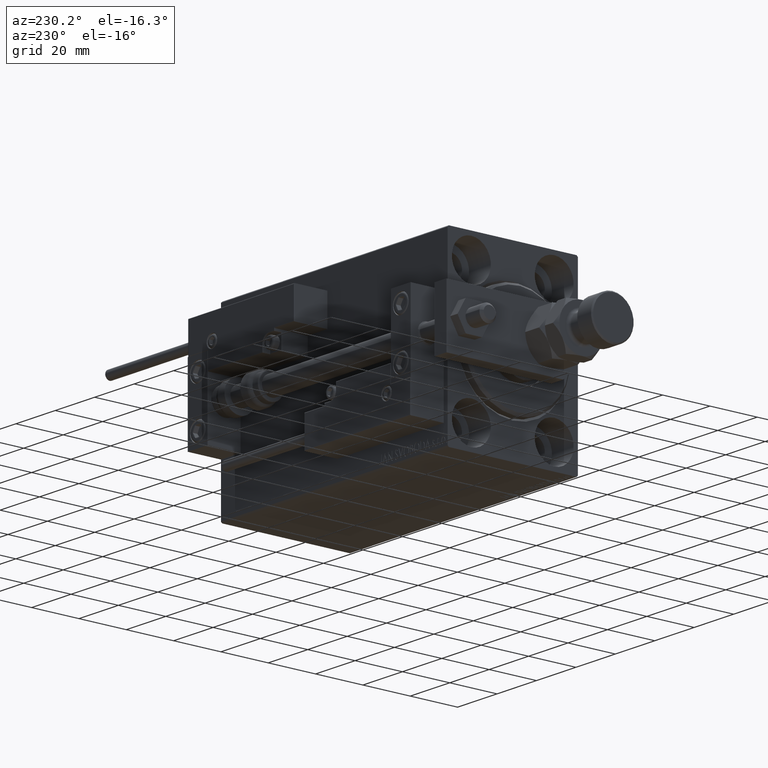
[diagram: clean part render]
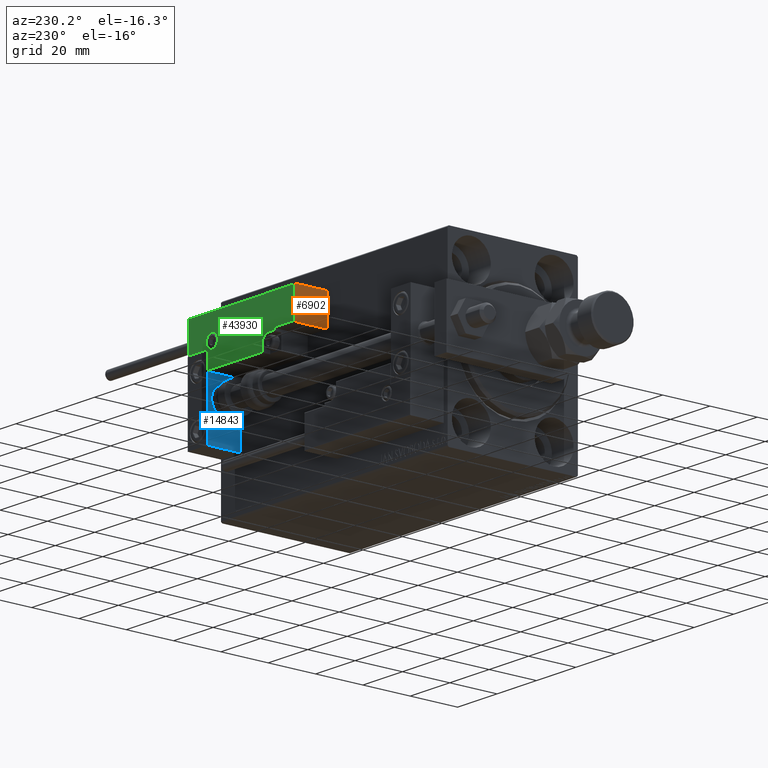
[diagram: same view with three faces highlighted in distinct colors, each labeled with its STEP entity id]
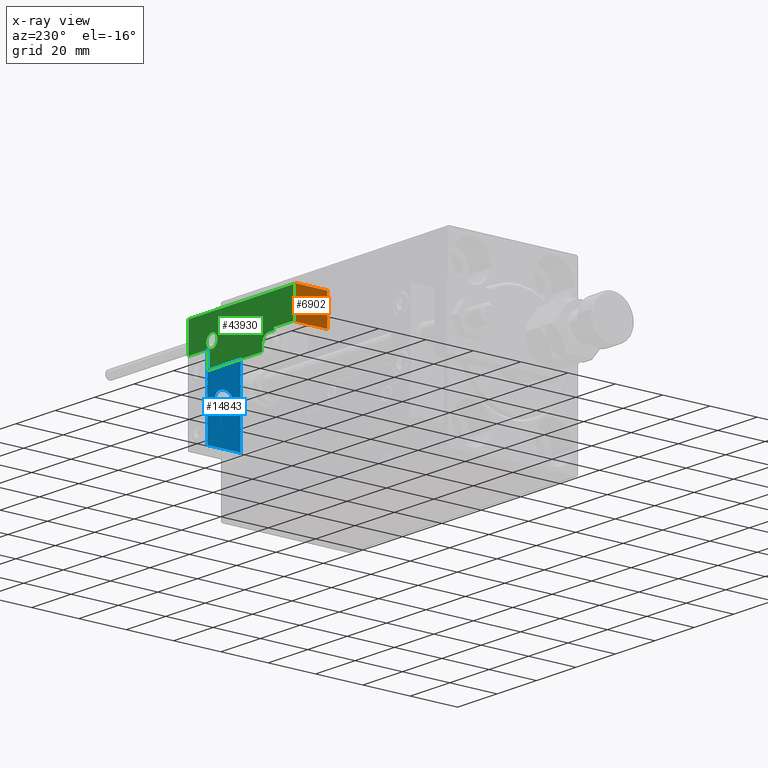
[diagram: x-ray of the same camera — body ghosted, the three highlighted faces saturated]
A machine part, auxiliary view with three faces highlighted in distinct colors.
The next image is the same camera in x-ray (body ghosted, the three faces saturated) — at least one of them is partly hidden behind the body in this view.
Their STEP definitions:

[orange] entity #6902 — the highlighted planar face has unit normal (1, -0, -0).
#1215 = EDGE_CURVE ( 'NONE', #35689, #28387, #51288, .T. ) ;
#3738 = FACE_OUTER_BOUND ( 'NONE', #23605, .T. ) ;
#5028 = EDGE_CURVE ( 'NONE', #28387, #42710, #25823, .T. ) ;
#6902 = ADVANCED_FACE ( 'NONE', ( #3738 ), #23800, .F. ) ;
#11634 = CARTESIAN_POINT ( 'NONE',  ( 27.00000000000006395, 7.000000000000007994, 13.70000000000000107 ) ) ;
#13708 = LINE ( 'NONE', #17882, #20208 ) ;
#17209 = CARTESIAN_POINT ( 'NONE',  ( 27.00000000000006395, 7.000000000000007994, 13.70000000000000107 ) ) ;
#17882 = CARTESIAN_POINT ( 'NONE',  ( 27.00000000000006395, 7.000000000000007994, 0.000000000000000000 ) ) ;
#18944 = DIRECTION ( 'NONE',  ( -0.000000000000000000, -1.000000000000000000, -0.000000000000000000 ) ) ;
#20208 = VECTOR ( 'NONE', #46293, 1000.000000000000000 ) ;
#22877 = AXIS2_PLACEMENT_3D ( 'NONE', #43616, #35535, #46750 ) ;
#23605 = EDGE_LOOP ( 'NONE', ( #35170, #29255, #43040, #39005 ) ) ;
#23800 = PLANE ( 'NONE',  #22877 ) ;
#24123 = CARTESIAN_POINT ( 'NONE',  ( 27.00000000000006395, 20.00000000000001776, 0.000000000000000000 ) ) ;
#25823 = LINE ( 'NONE', #26081, #36118 ) ;
#26081 = CARTESIAN_POINT ( 'NONE',  ( 27.00000000000006395, 7.000000000000007994, 14.00000000000000000 ) ) ;
#26781 = LINE ( 'NONE', #51045, #37339 ) ;
#28387 = VERTEX_POINT ( 'NONE', #17209 ) ;
#29255 = ORIENTED_EDGE ( 'NONE', *, *, #1215, .T. ) ;
#32738 = EDGE_CURVE ( 'NONE', #42710, #43097, #13708, .T. ) ;
#35004 = CARTESIAN_POINT ( 'NONE',  ( 27.00000000000006395, 20.00000000000001776, 13.70000000000000107 ) ) ;
#35170 = ORIENTED_EDGE ( 'NONE', *, *, #50692, .F. ) ;
#35535 = DIRECTION ( 'NONE',  ( -1.000000000000000000, 0.000000000000000000, 0.000000000000000000 ) ) ;
#35689 = VERTEX_POINT ( 'NONE', #35004 ) ;
#36118 = VECTOR ( 'NONE', #42222, 1000.000000000000000 ) ;
#37339 = VECTOR ( 'NONE', #42677, 1000.000000000000000 ) ;
#38257 = VECTOR ( 'NONE', #18944, 1000.000000000000000 ) ;
#39005 = ORIENTED_EDGE ( 'NONE', *, *, #32738, .T. ) ;
#42222 = DIRECTION ( 'NONE',  ( -0.000000000000000000, -0.000000000000000000, -1.000000000000000000 ) ) ;
#42677 = DIRECTION ( 'NONE',  ( -0.000000000000000000, -0.000000000000000000, -1.000000000000000000 ) ) ;
#42710 = VERTEX_POINT ( 'NONE', #42953 ) ;
#42953 = CARTESIAN_POINT ( 'NONE',  ( 27.00000000000006395, 7.000000000000007994, 0.000000000000000000 ) ) ;
#43040 = ORIENTED_EDGE ( 'NONE', *, *, #5028, .T. ) ;
#43097 = VERTEX_POINT ( 'NONE', #24123 ) ;
#43616 = CARTESIAN_POINT ( 'NONE',  ( 27.00000000000006395, 7.000000000000007994, 14.00000000000000000 ) ) ;
#46293 = DIRECTION ( 'NONE',  ( 0.000000000000000000, 1.000000000000000000, 0.000000000000000000 ) ) ;
#46750 = DIRECTION ( 'NONE',  ( 0.000000000000000000, 0.000000000000000000, 1.000000000000000000 ) ) ;
#50692 = EDGE_CURVE ( 'NONE', #35689, #43097, #26781, .T. ) ;
#51045 = CARTESIAN_POINT ( 'NONE',  ( 27.00000000000006395, 20.00000000000001776, 14.00000000000000000 ) ) ;
#51288 = LINE ( 'NONE', #11634, #38257 ) ;

[blue] entity #14843 — the highlighted planar face has unit normal (-1, 0, 0).
#681 = DIRECTION ( 'NONE',  ( -1.000000000000000000, -0.000000000000000000, -0.000000000000000000 ) ) ;
#890 = EDGE_CURVE ( 'NONE', #32204, #34844, #35691, .T. ) ;
#911 = EDGE_CURVE ( 'NONE', #31764, #41812, #50799, .T. ) ;
#1238 = CARTESIAN_POINT ( 'NONE',  ( 0.000000000000000000, 0.000000000000000000, 0.000000000000000000 ) ) ;
#1250 = LINE ( 'NONE', #22081, #47028 ) ;
#2133 = ORIENTED_EDGE ( 'NONE', *, *, #47623, .F. ) ;
#3889 = DIRECTION ( 'NONE',  ( 0.000000000000000000, 0.000000000000000000, 1.000000000000000000 ) ) ;
#5653 = FACE_BOUND ( 'NONE', #20541, .T. ) ;
#6633 = VECTOR ( 'NONE', #11702, 1000.000000000000000 ) ;
#7157 = ORIENTED_EDGE ( 'NONE', *, *, #38972, .T. ) ;
#9025 = CARTESIAN_POINT ( 'NONE',  ( 0.000000000000000000, -7.000000000000000000, 15.99999999999999289 ) ) ;
#11289 = VERTEX_POINT ( 'NONE', #9025 ) ;
#11436 = DIRECTION ( 'NONE',  ( -1.000000000000000000, -0.000000000000000000, -0.000000000000000000 ) ) ;
#11702 = DIRECTION ( 'NONE',  ( 0.000000000000000000, -1.000000000000000000, 0.000000000000000000 ) ) ;
#12391 = DIRECTION ( 'NONE',  ( 0.000000000000000000, 0.000000000000000000, 1.000000000000000000 ) ) ;
#12473 = ORIENTED_EDGE ( 'NONE', *, *, #911, .F. ) ;
#13159 = CARTESIAN_POINT ( 'NONE',  ( 0.000000000000000000, 0.000000000000000000, 0.000000000000000000 ) ) ;
#13372 = CARTESIAN_POINT ( 'NONE',  ( 0.000000000000000000, -7.000000000000000000, -16.00000000000000711 ) ) ;
#14843 = ADVANCED_FACE ( 'NONE', ( #5653, #49187 ), #33266, .T. ) ;
#15897 = DIRECTION ( 'NONE',  ( 0.000000000000000000, 0.000000000000000000, -1.000000000000000000 ) ) ;
#16289 = LINE ( 'NONE', #35345, #23919 ) ;
#16551 = VERTEX_POINT ( 'NONE', #17504 ) ;
#17129 = DIRECTION ( 'NONE',  ( -0.000000000000000000, 0.000000000000000000, 1.000000000000000000 ) ) ;
#17504 = CARTESIAN_POINT ( 'NONE',  ( 0.000000000000000000, 7.000000000000000000, 15.99999999999999289 ) ) ;
#19094 = CARTESIAN_POINT ( 'NONE',  ( 0.000000000000000000, 0.000000000000000000, 4.000000000000000000 ) ) ;
#20541 = EDGE_LOOP ( 'NONE', ( #47154, #12473 ) ) ;
#20797 = EDGE_LOOP ( 'NONE', ( #2133, #43087, #7157, #41371 ) ) ;
#22081 = CARTESIAN_POINT ( 'NONE',  ( 0.000000000000000000, 7.000000000000000000, 15.99999999999999289 ) ) ;
#22462 = AXIS2_PLACEMENT_3D ( 'NONE', #43508, #11436, #3889 ) ;
#23919 = VECTOR ( 'NONE', #47342, 1000.000000000000000 ) ;
#27377 = CARTESIAN_POINT ( 'NONE',  ( 0.000000000000000000, 7.000000000000000000, -16.00000000000000711 ) ) ;
#27631 = LINE ( 'NONE', #43279, #31374 ) ;
#29363 = DIRECTION ( 'NONE',  ( -1.000000000000000000, 0.000000000000000000, -0.000000000000000000 ) ) ;
#31374 = VECTOR ( 'NONE', #15897, 1000.000000000000000 ) ;
#31446 = AXIS2_PLACEMENT_3D ( 'NONE', #1238, #29363, #17129 ) ;
#31764 = VERTEX_POINT ( 'NONE', #34542 ) ;
#32204 = VERTEX_POINT ( 'NONE', #27377 ) ;
#33266 = PLANE ( 'NONE',  #31446 ) ;
#33787 = DIRECTION ( 'NONE',  ( 0.000000000000000000, 0.000000000000000000, -1.000000000000000000 ) ) ;
#33970 = CIRCLE ( 'NONE', #45631, 4.000000000000000000 ) ;
#34542 = CARTESIAN_POINT ( 'NONE',  ( 0.000000000000000000, 4.898587196589412829E-16, -4.000000000000000000 ) ) ;
#34844 = VERTEX_POINT ( 'NONE', #13372 ) ;
#35345 = CARTESIAN_POINT ( 'NONE',  ( 0.000000000000000000, 7.000000000000000000, 15.99999999999999289 ) ) ;
#35691 = LINE ( 'NONE', #47156, #6633 ) ;
#38972 = EDGE_CURVE ( 'NONE', #16551, #32204, #1250, .T. ) ;
#41371 = ORIENTED_EDGE ( 'NONE', *, *, #890, .T. ) ;
#41812 = VERTEX_POINT ( 'NONE', #19094 ) ;
#43087 = ORIENTED_EDGE ( 'NONE', *, *, #43871, .F. ) ;
#43279 = CARTESIAN_POINT ( 'NONE',  ( 0.000000000000000000, -7.000000000000000000, 15.99999999999999289 ) ) ;
#43508 = CARTESIAN_POINT ( 'NONE',  ( 0.000000000000000000, 0.000000000000000000, 0.000000000000000000 ) ) ;
#43871 = EDGE_CURVE ( 'NONE', #16551, #11289, #16289, .T. ) ;
#45631 = AXIS2_PLACEMENT_3D ( 'NONE', #13159, #681, #12391 ) ;
#47028 = VECTOR ( 'NONE', #33787, 1000.000000000000000 ) ;
#47154 = ORIENTED_EDGE ( 'NONE', *, *, #50170, .F. ) ;
#47156 = CARTESIAN_POINT ( 'NONE',  ( 0.000000000000000000, 7.000000000000000000, -16.00000000000000711 ) ) ;
#47342 = DIRECTION ( 'NONE',  ( 0.000000000000000000, -1.000000000000000000, 0.000000000000000000 ) ) ;
#47623 = EDGE_CURVE ( 'NONE', #11289, #34844, #27631, .T. ) ;
#49187 = FACE_OUTER_BOUND ( 'NONE', #20797, .T. ) ;
#50170 = EDGE_CURVE ( 'NONE', #41812, #31764, #33970, .T. ) ;
#50799 = CIRCLE ( 'NONE', #22462, 4.000000000000000000 ) ;

[green] entity #43930 — the highlighted planar face has unit normal (0, 1, -0).
#82 = VERTEX_POINT ( 'NONE', #38163 ) ;
#176 = EDGE_CURVE ( 'NONE', #21292, #24858, #28257, .T. ) ;
#739 = VECTOR ( 'NONE', #33878, 1000.000000000000000 ) ;
#1596 = LINE ( 'NONE', #2362, #22240 ) ;
#2362 = CARTESIAN_POINT ( 'NONE',  ( 26.70000000000006324, 20.00000000000001776, 14.00000000000000000 ) ) ;
#2866 = DIRECTION ( 'NONE',  ( 1.000000000000000000, -1.734723475976815230E-16, 0.000000000000000000 ) ) ;
#3703 = LINE ( 'NONE', #34975, #10609 ) ;
#3758 = DIRECTION ( 'NONE',  ( 1.000000000000000000, 0.000000000000000000, 0.000000000000000000 ) ) ;
#4163 = DIRECTION ( 'NONE',  ( 0.000000000000000000, -1.000000000000000000, 0.000000000000000000 ) ) ;
#4921 = CARTESIAN_POINT ( 'NONE',  ( -16.69999999999999218, 3.252606517456513302E-15, 14.00000000000000000 ) ) ;
#5598 = CARTESIAN_POINT ( 'NONE',  ( 0.000000000000000000, 0.000000000000000000, 14.00000000000000000 ) ) ;
#7215 = VERTEX_POINT ( 'NONE', #21687 ) ;
#9242 = DIRECTION ( 'NONE',  ( 1.000000000000000000, -1.734723475976796001E-16, 0.000000000000000000 ) ) ;
#10609 = VECTOR ( 'NONE', #42798, 1000.000000000000000 ) ;
#12128 = LINE ( 'NONE', #28039, #38114 ) ;
#12432 = AXIS2_PLACEMENT_3D ( 'NONE', #31108, #19657, #40226 ) ;
#12515 = VERTEX_POINT ( 'NONE', #45192 ) ;
#12890 = DIRECTION ( 'NONE',  ( -0.000000000000000000, 0.000000000000000000, 1.000000000000000000 ) ) ;
#13290 = EDGE_LOOP ( 'NONE', ( #48297, #36901, #24063, #22779, #28267, #13804, #21745, #22995, #35747, #14426, #33645 ) ) ;
#13716 = DIRECTION ( 'NONE',  ( 1.000000000000000000, 0.000000000000000000, 0.000000000000000000 ) ) ;
#13804 = ORIENTED_EDGE ( 'NONE', *, *, #22683, .T. ) ;
#14426 = ORIENTED_EDGE ( 'NONE', *, *, #34494, .T. ) ;
#15880 = LINE ( 'NONE', #4921, #30490 ) ;
#16318 = CARTESIAN_POINT ( 'NONE',  ( 16.69999999999999929, 7.300000000000009592, 14.00000000000000000 ) ) ;
#16858 = CARTESIAN_POINT ( 'NONE',  ( 10.69999999999999929, 0.3000000000000032085, 14.00000000000000000 ) ) ;
#16874 = EDGE_CURVE ( 'NONE', #25485, #82, #33583, .T. ) ;
#17608 = CARTESIAN_POINT ( 'NONE',  ( -26.69999999999994600, 7.000000000000005329, 14.00000000000000000 ) ) ;
#18569 = VERTEX_POINT ( 'NONE', #41187 ) ;
#19657 = DIRECTION ( 'NONE',  ( 0.000000000000000000, -0.000000000000000000, -1.000000000000000000 ) ) ;
#20246 = EDGE_CURVE ( 'NONE', #21701, #22143, #49405, .T. ) ;
#20975 = CARTESIAN_POINT ( 'NONE',  ( -16.69999999999999218, 7.300000000000003375, 14.00000000000000000 ) ) ;
#21058 = DIRECTION ( 'NONE',  ( 0.000000000000000000, -0.000000000000000000, -1.000000000000000000 ) ) ;
#21195 = EDGE_LOOP ( 'NONE', ( #42772, #22267 ) ) ;
#21292 = VERTEX_POINT ( 'NONE', #47570 ) ;
#21528 = DIRECTION ( 'NONE',  ( 1.000000000000000000, -0.000000000000000000, 0.000000000000000000 ) ) ;
#21687 = CARTESIAN_POINT ( 'NONE',  ( 13.99999999999999822, 6.300000000000001599, 14.00000000000000000 ) ) ;
#21701 = VERTEX_POINT ( 'NONE', #22772 ) ;
#21745 = ORIENTED_EDGE ( 'NONE', *, *, #49265, .T. ) ;
#22143 = VERTEX_POINT ( 'NONE', #16858 ) ;
#22240 = VECTOR ( 'NONE', #45121, 1000.000000000000000 ) ;
#22267 = ORIENTED_EDGE ( 'NONE', *, *, #176, .T. ) ;
#22683 = EDGE_CURVE ( 'NONE', #12515, #38152, #51200, .T. ) ;
#22687 = CARTESIAN_POINT ( 'NONE',  ( -16.99999999999999289, 7.300000000000003375, 14.00000000000000000 ) ) ;
#22772 = CARTESIAN_POINT ( 'NONE',  ( -16.69999999999999218, 0.3000000000000032085, 14.00000000000000000 ) ) ;
#22779 = ORIENTED_EDGE ( 'NONE', *, *, #39139, .T. ) ;
#22995 = ORIENTED_EDGE ( 'NONE', *, *, #47327, .T. ) ;
#23052 = DIRECTION ( 'NONE',  ( 0.000000000000000000, -0.000000000000000000, -1.000000000000000000 ) ) ;
#23063 = AXIS2_PLACEMENT_3D ( 'NONE', #5598, #12890, #25413 ) ;
#24063 = ORIENTED_EDGE ( 'NONE', *, *, #45264, .T. ) ;
#24557 = CIRCLE ( 'NONE', #26215, 3.299999999999997158 ) ;
#24858 = VERTEX_POINT ( 'NONE', #30169 ) ;
#25413 = DIRECTION ( 'NONE',  ( 1.000000000000000000, 0.000000000000000000, 0.000000000000000000 ) ) ;
#25485 = VERTEX_POINT ( 'NONE', #45629 ) ;
#26215 = AXIS2_PLACEMENT_3D ( 'NONE', #43884, #23052, #3758 ) ;
#26894 = VECTOR ( 'NONE', #37669, 1000.000000000000000 ) ;
#27525 = EDGE_CURVE ( 'NONE', #24858, #21292, #35086, .T. ) ;
#27957 = CARTESIAN_POINT ( 'NONE',  ( 16.69999999999999929, 7.000000000000009770, 14.00000000000000000 ) ) ;
#28039 = CARTESIAN_POINT ( 'NONE',  ( 27.00000000000006395, 7.300000000000007816, 14.00000000000000000 ) ) ;
#28257 = CIRCLE ( 'NONE', #12432, 2.800000000000000266 ) ;
#28267 = ORIENTED_EDGE ( 'NONE', *, *, #51490, .T. ) ;
#30169 = CARTESIAN_POINT ( 'NONE',  ( -11.99999999999994849, 9.800000000000004263, 14.00000000000000000 ) ) ;
#30490 = VECTOR ( 'NONE', #4163, 1000.000000000000000 ) ;
#31108 = CARTESIAN_POINT ( 'NONE',  ( -14.79999999999994920, 9.800000000000004263, 14.00000000000000000 ) ) ;
#31869 = VERTEX_POINT ( 'NONE', #20975 ) ;
#32740 = LINE ( 'NONE', #17608, #26894 ) ;
#32931 = VECTOR ( 'NONE', #2866, 1000.000000000000000 ) ;
#32948 = PLANE ( 'NONE',  #23063 ) ;
#33583 = LINE ( 'NONE', #49503, #38885 ) ;
#33645 = ORIENTED_EDGE ( 'NONE', *, *, #40790, .T. ) ;
#33878 = DIRECTION ( 'NONE',  ( 1.000000000000000000, 5.782411586589357639E-16, -0.000000000000000000 ) ) ;
#34494 = EDGE_CURVE ( 'NONE', #82, #18569, #32740, .T. ) ;
#34975 = CARTESIAN_POINT ( 'NONE',  ( 10.69999999999999929, 3.000000000000003109, 14.00000000000000000 ) ) ;
#35086 = CIRCLE ( 'NONE', #41741, 2.800000000000000266 ) ;
#35139 = CARTESIAN_POINT ( 'NONE',  ( 10.69999999999999929, 3.000000000000003109, 14.00000000000000000 ) ) ;
#35747 = ORIENTED_EDGE ( 'NONE', *, *, #16874, .T. ) ;
#35776 = VECTOR ( 'NONE', #47265, 1000.000000000000000 ) ;
#36069 = CARTESIAN_POINT ( 'NONE',  ( 26.70000000000006324, 7.300000000000007816, 14.00000000000000000 ) ) ;
#36901 = ORIENTED_EDGE ( 'NONE', *, *, #20246, .T. ) ;
#37657 = CARTESIAN_POINT ( 'NONE',  ( 11.00000000000000000, 0.3000000000000032085, 14.00000000000000000 ) ) ;
#37669 = DIRECTION ( 'NONE',  ( -8.006416042969869188E-16, -1.000000000000000000, 0.000000000000000000 ) ) ;
#38114 = VECTOR ( 'NONE', #9242, 1000.000000000000000 ) ;
#38152 = VERTEX_POINT ( 'NONE', #16318 ) ;
#38163 = CARTESIAN_POINT ( 'NONE',  ( -26.69999999999993534, 19.70000000000002061, 14.00000000000000000 ) ) ;
#38885 = VECTOR ( 'NONE', #48488, 1000.000000000000000 ) ;
#39114 = VERTEX_POINT ( 'NONE', #36069 ) ;
#39139 = EDGE_CURVE ( 'NONE', #48833, #7215, #24557, .T. ) ;
#40226 = DIRECTION ( 'NONE',  ( 1.000000000000000000, 0.000000000000000000, 0.000000000000000000 ) ) ;
#40790 = EDGE_CURVE ( 'NONE', #18569, #31869, #46396, .T. ) ;
#41187 = CARTESIAN_POINT ( 'NONE',  ( -26.69999999999994600, 7.300000000000005151, 14.00000000000000000 ) ) ;
#41361 = CARTESIAN_POINT ( 'NONE',  ( -14.79999999999994920, 9.800000000000004263, 14.00000000000000000 ) ) ;
#41741 = AXIS2_PLACEMENT_3D ( 'NONE', #41361, #21058, #13716 ) ;
#42772 = ORIENTED_EDGE ( 'NONE', *, *, #27525, .T. ) ;
#42798 = DIRECTION ( 'NONE',  ( -0.000000000000000000, 1.000000000000000000, -0.000000000000000000 ) ) ;
#43884 = CARTESIAN_POINT ( 'NONE',  ( 13.99999999999999822, 3.000000000000002665, 14.00000000000000000 ) ) ;
#43930 = ADVANCED_FACE ( 'NONE', ( #49385, #48877 ), #32948, .T. ) ;
#43992 = VECTOR ( 'NONE', #21528, 1000.000000000000000 ) ;
#45121 = DIRECTION ( 'NONE',  ( 0.000000000000000000, 1.000000000000000000, -0.000000000000000000 ) ) ;
#45192 = CARTESIAN_POINT ( 'NONE',  ( 16.69999999999999929, 6.300000000000003375, 14.00000000000000000 ) ) ;
#45264 = EDGE_CURVE ( 'NONE', #22143, #48833, #3703, .T. ) ;
#45629 = CARTESIAN_POINT ( 'NONE',  ( 26.70000000000006324, 19.70000000000001705, 14.00000000000000000 ) ) ;
#45632 = LINE ( 'NONE', #49045, #739 ) ;
#46396 = LINE ( 'NONE', #22687, #32931 ) ;
#46538 = EDGE_CURVE ( 'NONE', #31869, #21701, #15880, .T. ) ;
#47265 = DIRECTION ( 'NONE',  ( 9.912705577010318647E-16, 1.000000000000000000, 0.000000000000000000 ) ) ;
#47327 = EDGE_CURVE ( 'NONE', #39114, #25485, #1596, .T. ) ;
#47570 = CARTESIAN_POINT ( 'NONE',  ( -17.59999999999994813, 9.800000000000004263, 14.00000000000000000 ) ) ;
#48297 = ORIENTED_EDGE ( 'NONE', *, *, #46538, .T. ) ;
#48488 = DIRECTION ( 'NONE',  ( -1.000000000000000000, 6.424901762877063495E-17, -0.000000000000000000 ) ) ;
#48833 = VERTEX_POINT ( 'NONE', #35139 ) ;
#48877 = FACE_OUTER_BOUND ( 'NONE', #13290, .T. ) ;
#49045 = CARTESIAN_POINT ( 'NONE',  ( 17.00000000000000000, 6.300000000000003375, 14.00000000000000000 ) ) ;
#49265 = EDGE_CURVE ( 'NONE', #38152, #39114, #12128, .T. ) ;
#49385 = FACE_BOUND ( 'NONE', #21195, .T. ) ;
#49405 = LINE ( 'NONE', #37657, #43992 ) ;
#49503 = CARTESIAN_POINT ( 'NONE',  ( -26.99999999999993605, 19.70000000000002061, 14.00000000000000000 ) ) ;
#51200 = LINE ( 'NONE', #27957, #35776 ) ;
#51490 = EDGE_CURVE ( 'NONE', #7215, #12515, #45632, .T. ) ;